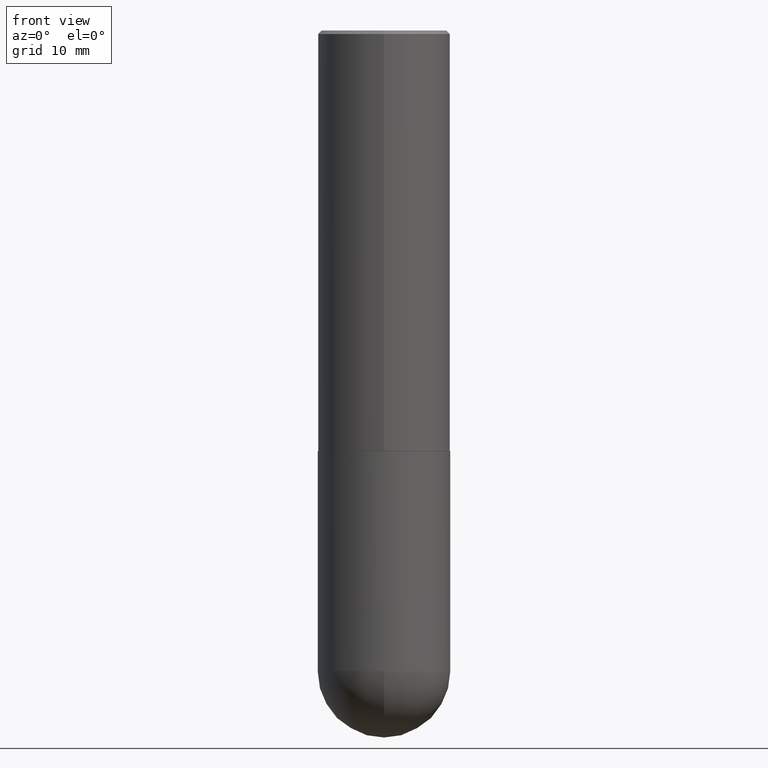
[diagram: clean part render]
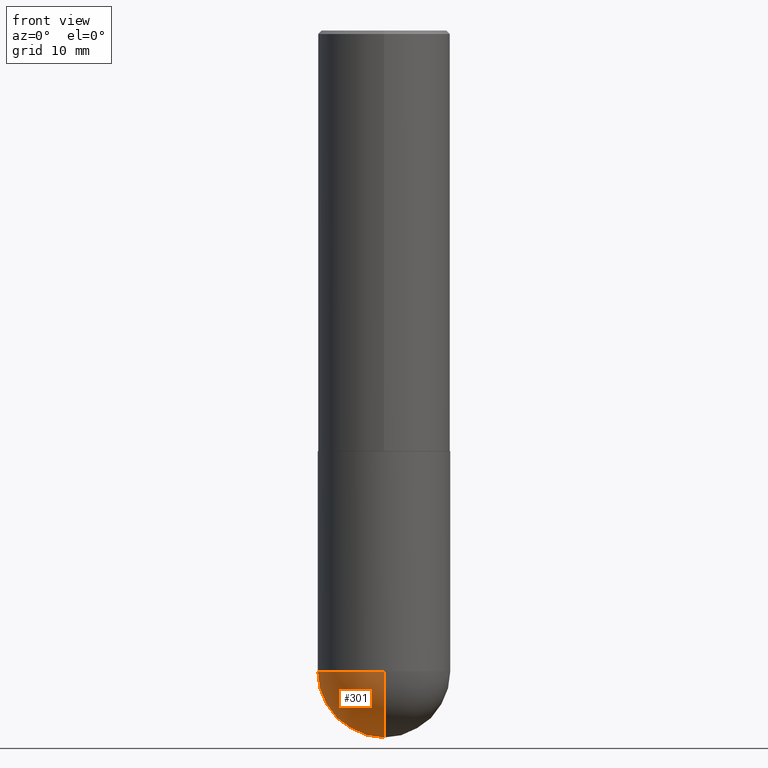
[diagram: same view with one face highlighted and labeled with its STEP entity id]
A machine part, front view. The second image highlights one B-rep face of the part: STEP entity #301.
In plain terms, the highlighted spherical surface has radius 9.525 mm.
Its self-contained STEP definition (entity closure, byte-faithful):
#26 = DIRECTION ( 'NONE',  ( -7.105427357600999492E-15, -1.000000000000000000, 0.000000000000000000 ) ) ;
#28 = AXIS2_PLACEMENT_3D ( 'NONE', #184, #29, #26 ) ;
#29 = DIRECTION ( 'NONE',  ( -1.000000000000000000, 7.105427357601001070E-15, -4.926315508542082329E-29 ) ) ;
#33 = CARTESIAN_POINT ( 'NONE',  ( 9.466789814748773816E-29, -1.441714559602862136E-14, -4.000000000000000000 ) ) ;
#40 = CIRCLE ( 'NONE', #304, 0.3750000000000001110 ) ;
#47 = ORIENTED_EDGE ( 'NONE', *, *, #386, .T. ) ;
#49 = AXIS2_PLACEMENT_3D ( 'NONE', #228, #209, #82 ) ;
#65 = AXIS2_PLACEMENT_3D ( 'NONE', #290, #336, #196 ) ;
#67 = VERTEX_POINT ( 'NONE', #376 ) ;
#82 = DIRECTION ( 'NONE',  ( 6.982962677686266711E-15, 1.000000000000000000, -2.913971193241878005E-15 ) ) ;
#101 = CIRCLE ( 'NONE', #187, 0.3750000000000001110 ) ;
#102 = SPHERICAL_SURFACE ( 'NONE', #49, 0.3750000000000003886 ) ;
#106 = CARTESIAN_POINT ( 'NONE',  ( 2.618611004132438763E-15, 0.3749999999999873990, -3.625000000000000888 ) ) ;
#127 = ORIENTED_EDGE ( 'NONE', *, *, #307, .F. ) ;
#132 = FACE_OUTER_BOUND ( 'NONE', #407, .T. ) ;
#140 = DIRECTION ( 'NONE',  ( 1.000000000000000000, -6.982962677686265922E-15, 0.000000000000000000 ) ) ;
#141 = ORIENTED_EDGE ( 'NONE', *, *, #265, .F. ) ;
#163 = VERTEX_POINT ( 'NONE', #33 ) ;
#180 = DIRECTION ( 'NONE',  ( 1.000000000000000000, -6.982962677686265922E-15, 0.000000000000000000 ) ) ;
#184 = CARTESIAN_POINT ( 'NONE',  ( 8.533704644507233916E-29, -1.313080222144645289E-14, -3.624999999999999556 ) ) ;
#187 = AXIS2_PLACEMENT_3D ( 'NONE', #391, #411, #180 ) ;
#196 = DIRECTION ( 'NONE',  ( 6.982962677686265922E-15, 1.000000000000000000, 0.000000000000000000 ) ) ;
#209 = DIRECTION ( 'NONE',  ( -1.000000000000000000, 6.982962677686266711E-15, -4.883557194083113462E-29 ) ) ;
#210 = EDGE_CURVE ( 'NONE', #163, #274, #227, .T. ) ;
#227 = CIRCLE ( 'NONE', #65, 0.3750000000000003886 ) ;
#228 = CARTESIAN_POINT ( 'NONE',  ( 8.533704644507233916E-29, -1.313080222144645289E-14, -3.624999999999999556 ) ) ;
#265 = EDGE_CURVE ( 'NONE', #67, #367, #40, .T. ) ;
#271 = CIRCLE ( 'NONE', #28, 0.3750000000000003886 ) ;
#274 = VERTEX_POINT ( 'NONE', #106 ) ;
#286 = CARTESIAN_POINT ( 'NONE',  ( 8.864824422421120163E-29, -1.265661985330640259E-14, -3.624999999999999556 ) ) ;
#290 = CARTESIAN_POINT ( 'NONE',  ( 8.533704644507233916E-29, -1.313080222144645289E-14, -3.624999999999999556 ) ) ;
#301 = ADVANCED_FACE ( 'NONE', ( #132 ), #102, .T. ) ;
#304 = AXIS2_PLACEMENT_3D ( 'NONE', #286, #339, #140 ) ;
#307 = EDGE_CURVE ( 'NONE', #274, #67, #101, .T. ) ;
#309 = CARTESIAN_POINT ( 'NONE',  ( -2.664535259100290106E-15, -0.3750000000000131006, -3.624999999999998668 ) ) ;
#336 = DIRECTION ( 'NONE',  ( 1.000000000000000000, -6.982962677686265922E-15, 4.883557194083112340E-29 ) ) ;
#339 = DIRECTION ( 'NONE',  ( -2.445468806185136597E-29, 3.491481338843145583E-15, 1.000000000000000000 ) ) ;
#360 = ORIENTED_EDGE ( 'NONE', *, *, #210, .F. ) ;
#367 = VERTEX_POINT ( 'NONE', #309 ) ;
#376 = CARTESIAN_POINT ( 'NONE',  ( -0.3750000000000001110, -7.818637460776168963E-15, -3.624999999999999556 ) ) ;
#386 = EDGE_CURVE ( 'NONE', #163, #367, #271, .T. ) ;
#391 = CARTESIAN_POINT ( 'NONE',  ( 8.864824422421120163E-29, -1.265661985330640259E-14, -3.624999999999999556 ) ) ;
#407 = EDGE_LOOP ( 'NONE', ( #360, #47, #141, #127 ) ) ;
#411 = DIRECTION ( 'NONE',  ( -2.445468806185136597E-29, 3.491481338843145583E-15, 1.000000000000000000 ) ) ;